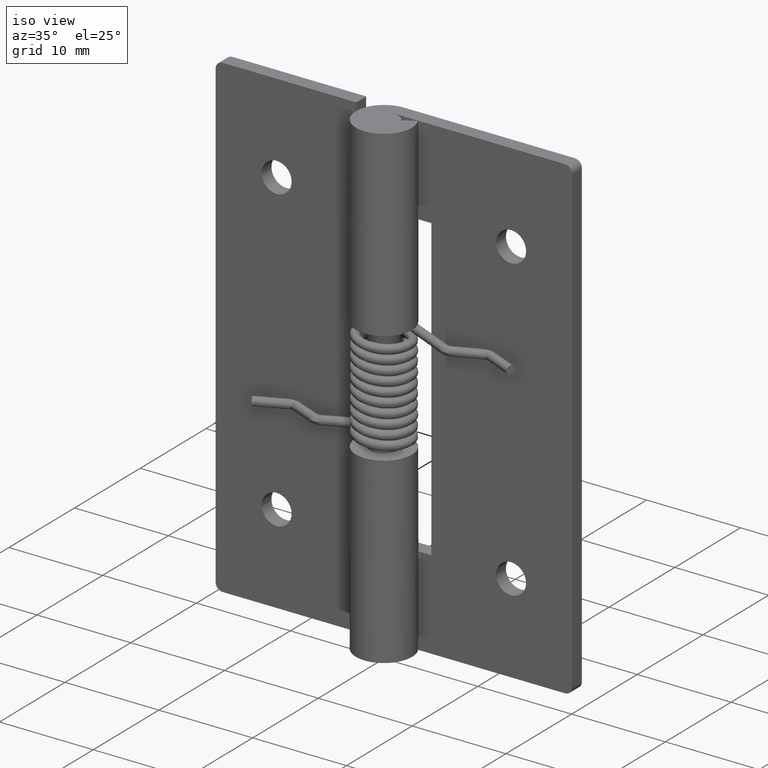
[diagram: clean part render]
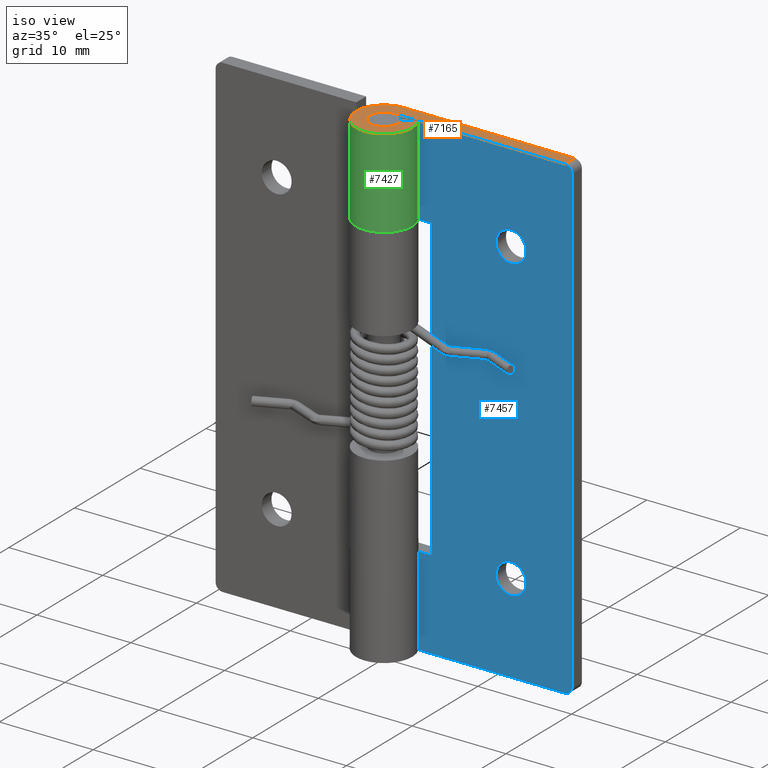
[diagram: same view with three faces highlighted in distinct colors, each labeled with its STEP entity id]
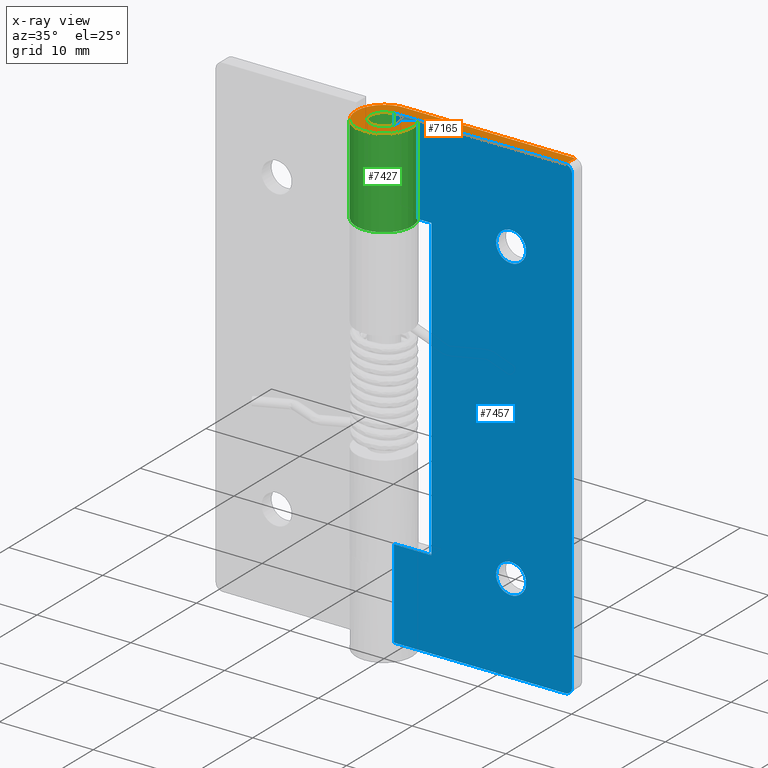
[diagram: x-ray of the same camera — body ghosted, the three highlighted faces saturated]
A machine part, iso view with three faces highlighted in distinct colors.
The next image is the same camera in x-ray (body ghosted, the three faces saturated) — at least one of them is partly hidden behind the body in this view.
Their STEP definitions:

[orange] entity #7165 — the highlighted face is a freeform B-spline surface patch.
#6990=CARTESIAN_POINT('',(18.250000000000000,1.500000000000055,51.0));
#6991=VERTEX_POINT('',#6990);
#7012=CARTESIAN_POINT('',(18.250000000000000,3.0,51.0));
#7013=VERTEX_POINT('',#7012);
#7027=CARTESIAN_POINT('',(18.250000000000000,3.0,51.0));
#7028=CARTESIAN_POINT('',(18.250000000000000,1.500000000000055,51.0));
#7029=QUASI_UNIFORM_CURVE('',1,(#7027,#7028),.UNSPECIFIED.,.F.,.U.);
#7030=EDGE_CURVE('',#7013,#6991,#7029,.T.);
#7096=CARTESIAN_POINT('',(-4.061385404901762,-3.299492219483425,51.0));
#7097=CARTESIAN_POINT('',(19.311435552384690,-3.299492219483425,51.0));
#7098=CARTESIAN_POINT('',(-4.061385404901762,3.299690264964965,51.0));
#7099=CARTESIAN_POINT('',(19.311435552384690,3.299690264964965,51.0));
#7100=B_SPLINE_SURFACE_WITH_KNOTS('',1,1,((#7096,#7098),(#7097,#7099)),.UNSPECIFIED.,.F.,.F.,.U.,(2,2),(2,2),(0.0,23.372820957286450),(0.0,6.599182484448390),.UNSPECIFIED.);
#7101=CARTESIAN_POINT('',(0.0,1.500000000000000,51.0));
#7102=VERTEX_POINT('',#7101);
#7103=CARTESIAN_POINT('',(18.250000000000000,1.500000000000055,51.0));
#7104=CARTESIAN_POINT('',(0.0,1.500000000000000,51.0));
#7105=QUASI_UNIFORM_CURVE('',1,(#7103,#7104),.UNSPECIFIED.,.F.,.U.);
#7106=EDGE_CURVE('',#6991,#7102,#7105,.T.);
#7107=ORIENTED_EDGE('',*,*,#7106,.F.);
#7108=ORIENTED_EDGE('',*,*,#7030,.F.);
#7109=CARTESIAN_POINT('',(0.0,3.0,51.0));
#7110=VERTEX_POINT('',#7109);
#7111=CARTESIAN_POINT('',(0.0,3.0,51.0));
#7112=CARTESIAN_POINT('',(18.250000000000000,3.0,51.0));
#7113=QUASI_UNIFORM_CURVE('',1,(#7111,#7112),.UNSPECIFIED.,.F.,.U.);
#7114=EDGE_CURVE('',#7110,#7013,#7113,.T.);
#7115=ORIENTED_EDGE('',*,*,#7114,.F.);
#7116=CARTESIAN_POINT('',(2.626309197333780,1.450000000000000,51.0));
#7117=VERTEX_POINT('',#7116);
#7118=CARTESIAN_POINT('',(2.626309197333780,1.450000000000000,51.0));
#7119=CARTESIAN_POINT('',(3.733431584505770,-0.555272902071675,51.0));
#7120=CARTESIAN_POINT('',(2.090650590886091,-2.151552952364324,51.0));
#7121=CARTESIAN_POINT('',(0.447869597266413,-3.747833002656972,51.0));
#7122=CARTESIAN_POINT('',(-1.524795068197689,-2.583602136552764,51.0));
#7123=CARTESIAN_POINT('',(-3.497459733661792,-1.419371270448555,51.0));
#7124=CARTESIAN_POINT('',(-2.894028888043301,0.790314364775722,51.0));
#7125=CARTESIAN_POINT('',(-2.290598042424809,3.000000000000000,51.0));
#7126=CARTESIAN_POINT('',(0.0,3.0,51.0));
#7134=(BOUNDED_CURVE()B_SPLINE_CURVE(2,(#7118,#7119,#7120,#7121,#7122,#7123,#7124,#7125,#7126),.UNSPECIFIED.,.F.,.U.)B_SPLINE_CURVE_WITH_KNOTS((3,2,2,2,3),(0.0,0.250000000000000,0.500000000000000,0.750000000000000,1.0),.UNSPECIFIED.)CURVE()GEOMETRIC_REPRESENTATION_ITEM()RATIONAL_B_SPLINE_CURVE((1.0,0.794807562115481,1.0,0.794807562115481,1.0,0.794807562115481,1.0,0.794807562115481,1.0))REPRESENTATION_ITEM(''));
#7135=EDGE_CURVE('',#7117,#7110,#7134,.T.);
#7136=ORIENTED_EDGE('',*,*,#7135,.F.);
#7137=CARTESIAN_POINT('',(1.313154598666890,0.725000000000000,51.0));
#7138=VERTEX_POINT('',#7137);
#7139=CARTESIAN_POINT('',(1.313154598666890,0.725000000000000,51.0));
#7140=CARTESIAN_POINT('',(2.626309197333780,1.450000000000000,51.0));
#7141=QUASI_UNIFORM_CURVE('',1,(#7139,#7140),.UNSPECIFIED.,.F.,.U.);
#7142=EDGE_CURVE('',#7138,#7117,#7141,.T.);
#7143=ORIENTED_EDGE('',*,*,#7142,.F.);
#7144=CARTESIAN_POINT('',(1.313154598666890,0.725000000000000,51.0));
#7145=CARTESIAN_POINT('',(1.866715792252885,-0.277636451035838,51.0));
#7146=CARTESIAN_POINT('',(1.045325295443045,-1.075776476182162,51.0));
#7147=CARTESIAN_POINT('',(0.223934798633207,-1.873916501328486,51.0));
#7148=CARTESIAN_POINT('',(-0.762397534098844,-1.291801068276382,51.0));
#7149=CARTESIAN_POINT('',(-1.748729866830896,-0.709685635224277,51.0));
#7150=CARTESIAN_POINT('',(-1.447014444021651,0.395157182387861,51.0));
#7151=CARTESIAN_POINT('',(-1.145299021212405,1.500000000000000,51.0));
#7152=CARTESIAN_POINT('',(0.0,1.500000000000000,51.0));
#7160=(BOUNDED_CURVE()B_SPLINE_CURVE(2,(#7144,#7145,#7146,#7147,#7148,#7149,#7150,#7151,#7152),.UNSPECIFIED.,.F.,.U.)B_SPLINE_CURVE_WITH_KNOTS((3,2,2,2,3),(0.0,0.250000000000000,0.500000000000000,0.750000000000000,1.0),.UNSPECIFIED.)CURVE()GEOMETRIC_REPRESENTATION_ITEM()RATIONAL_B_SPLINE_CURVE((1.0,0.794807562115481,1.0,0.794807562115481,1.0,0.794807562115481,1.0,0.794807562115481,1.0))REPRESENTATION_ITEM(''));
#7161=EDGE_CURVE('',#7138,#7102,#7160,.T.);
#7162=ORIENTED_EDGE('',*,*,#7161,.T.);
#7163=EDGE_LOOP('',(#7107,#7108,#7115,#7136,#7143,#7162));
#7164=FACE_OUTER_BOUND('',#7163,.T.);
#7165=ADVANCED_FACE('',(#7164),#7100,.T.);

[blue] entity #7457 — the highlighted face is a freeform B-spline surface patch.
#6448=CARTESIAN_POINT('',(14.088815242160010,1.500000000000000,9.688854775634493));
#6449=VERTEX_POINT('',#6448);
#6450=CARTESIAN_POINT('',(12.500000000000000,1.500000000000000,7.899999999999800));
#6451=VERTEX_POINT('',#6450);
#6452=CARTESIAN_POINT('',(14.088815242160010,1.500000000000000,9.688854775634491));
#6453=CARTESIAN_POINT('',(14.099999999999998,1.500000000000000,9.594758591628681));
#6454=CARTESIAN_POINT('',(14.100000000000000,1.500000000000000,9.499999999999801));
#6455=CARTESIAN_POINT('',(14.100000000000001,1.500000000000000,7.899999999999800));
#6456=CARTESIAN_POINT('',(12.500000000000000,1.500000000000000,7.899999999999800));
#6464=(BOUNDED_CURVE()B_SPLINE_CURVE(2,(#6452,#6453,#6454,#6455,#6456),.UNSPECIFIED.,.F.,.U.)B_SPLINE_CURVE_WITH_KNOTS((3,2,3),(0.229562473476526,0.250000000000000,0.500000000000000),.UNSPECIFIED.)CURVE()GEOMETRIC_REPRESENTATION_ITEM()RATIONAL_B_SPLINE_CURVE((0.956026754111212,0.976055948287817,1.0,0.707106781186548,1.0))REPRESENTATION_ITEM(''));
#6465=EDGE_CURVE('',#6449,#6451,#6464,.T.);
#6506=CARTESIAN_POINT('',(10.902984322528990,1.500000000000000,9.402322336678992));
#6507=VERTEX_POINT('',#6506);
#6513=CARTESIAN_POINT('',(12.500000000000000,1.500000000000000,7.899999999999800));
#6514=CARTESIAN_POINT('',(10.994870293073713,1.500000000000000,7.899999999999798));
#6515=CARTESIAN_POINT('',(10.902984322528990,1.500000000000000,9.402322336678992));
#6523=(BOUNDED_CURVE()B_SPLINE_CURVE(2,(#6513,#6514,#6515),.UNSPECIFIED.,.F.,.U.)B_SPLINE_CURVE_WITH_KNOTS((3,3),(0.500000000000000,0.739332962227914),.UNSPECIFIED.)CURVE()GEOMETRIC_REPRESENTATION_ITEM()RATIONAL_B_SPLINE_CURVE((1.0,0.719603993299632,0.976072041643080))REPRESENTATION_ITEM(''));
#6524=EDGE_CURVE('',#6451,#6507,#6523,.T.);
#6547=CARTESIAN_POINT('',(12.500000000000000,1.500000000000000,11.099999999999801));
#6548=VERTEX_POINT('',#6547);
#6549=CARTESIAN_POINT('',(12.500000000000000,1.500000000000000,11.099999999999801));
#6550=CARTESIAN_POINT('',(13.921079241190951,1.500000000000000,11.099999999999801));
#6551=CARTESIAN_POINT('',(14.088815242160010,1.500000000000000,9.688854775634491));
#6559=(BOUNDED_CURVE()B_SPLINE_CURVE(2,(#6549,#6550,#6551),.UNSPECIFIED.,.F.,.U.)B_SPLINE_CURVE_WITH_KNOTS((3,3),(0.0,0.229562473476526),.UNSPECIFIED.)CURVE()GEOMETRIC_REPRESENTATION_ITEM()RATIONAL_B_SPLINE_CURVE((1.0,0.731050832898730,0.956026754111212))REPRESENTATION_ITEM(''));
#6560=EDGE_CURVE('',#6548,#6449,#6559,.T.);
#6562=CARTESIAN_POINT('',(10.902984322528987,1.500000000000000,9.402322336678992));
#6563=CARTESIAN_POINT('',(10.899999999999999,1.500000000000000,9.451115578656840));
#6564=CARTESIAN_POINT('',(10.900000000000000,1.500000000000000,9.499999999999801));
#6565=CARTESIAN_POINT('',(10.900000000000000,1.500000000000000,11.099999999999801));
#6566=CARTESIAN_POINT('',(12.500000000000000,1.500000000000000,11.099999999999801));
#6574=(BOUNDED_CURVE()B_SPLINE_CURVE(2,(#6562,#6563,#6564,#6565,#6566),.UNSPECIFIED.,.F.,.U.)B_SPLINE_CURVE_WITH_KNOTS((3,2,3),(0.739332962227914,0.750000000000000,1.0),.UNSPECIFIED.)CURVE()GEOMETRIC_REPRESENTATION_ITEM()RATIONAL_B_SPLINE_CURVE((0.976072041643082,0.987502787886917,1.0,0.707106781186548,1.0))REPRESENTATION_ITEM(''));
#6575=EDGE_CURVE('',#6507,#6548,#6574,.T.);
#6634=CARTESIAN_POINT('',(14.088815242160010,1.500000000000000,41.688854775634681));
#6635=VERTEX_POINT('',#6634);
#6636=CARTESIAN_POINT('',(12.500000000000000,1.500000000000000,39.900000000000013));
#6637=VERTEX_POINT('',#6636);
#6638=CARTESIAN_POINT('',(14.088815242160015,1.500000000000000,41.688854775634681));
#6639=CARTESIAN_POINT('',(14.100000000000005,1.500000000000000,41.594758591628882));
#6640=CARTESIAN_POINT('',(14.100000000000000,1.500000000000000,41.500000000000000));
#6641=CARTESIAN_POINT('',(14.100000000000001,1.500000000000000,39.900000000000006));
#6642=CARTESIAN_POINT('',(12.500000000000000,1.500000000000000,39.900000000000013));
#6650=(BOUNDED_CURVE()B_SPLINE_CURVE(2,(#6638,#6639,#6640,#6641,#6642),.UNSPECIFIED.,.F.,.U.)B_SPLINE_CURVE_WITH_KNOTS((3,2,3),(0.229562473476527,0.250000000000000,0.500000000000000),.UNSPECIFIED.)CURVE()GEOMETRIC_REPRESENTATION_ITEM()RATIONAL_B_SPLINE_CURVE((0.956026754111214,0.976055948287818,1.0,0.707106781186548,1.0))REPRESENTATION_ITEM(''));
#6651=EDGE_CURVE('',#6635,#6637,#6650,.T.);
#6692=CARTESIAN_POINT('',(10.902984322528990,1.500000000000000,41.402322336679191));
#6693=VERTEX_POINT('',#6692);
#6699=CARTESIAN_POINT('',(12.500000000000000,1.500000000000000,39.900000000000013));
#6700=CARTESIAN_POINT('',(10.994870293073713,1.500000000000000,39.899999999999999));
#6701=CARTESIAN_POINT('',(10.902984322528990,1.500000000000000,41.402322336679191));
#6709=(BOUNDED_CURVE()B_SPLINE_CURVE(2,(#6699,#6700,#6701),.UNSPECIFIED.,.F.,.U.)B_SPLINE_CURVE_WITH_KNOTS((3,3),(0.500000000000000,0.739332962227914),.UNSPECIFIED.)CURVE()GEOMETRIC_REPRESENTATION_ITEM()RATIONAL_B_SPLINE_CURVE((1.0,0.719603993299632,0.976072041643080))REPRESENTATION_ITEM(''));
#6710=EDGE_CURVE('',#6637,#6693,#6709,.T.);
#6733=CARTESIAN_POINT('',(12.500000000000000,1.500000000000000,43.100000000000001));
#6734=VERTEX_POINT('',#6733);
#6735=CARTESIAN_POINT('',(12.500000000000000,1.500000000000000,43.100000000000001));
#6736=CARTESIAN_POINT('',(13.921079241190945,1.500000000000000,43.099999999999994));
#6737=CARTESIAN_POINT('',(14.088815242160013,1.500000000000000,41.688854775634674));
#6745=(BOUNDED_CURVE()B_SPLINE_CURVE(2,(#6735,#6736,#6737),.UNSPECIFIED.,.F.,.U.)B_SPLINE_CURVE_WITH_KNOTS((3,3),(0.0,0.229562473476527),.UNSPECIFIED.)CURVE()GEOMETRIC_REPRESENTATION_ITEM()RATIONAL_B_SPLINE_CURVE((1.0,0.731050832898729,0.956026754111214))REPRESENTATION_ITEM(''));
#6746=EDGE_CURVE('',#6734,#6635,#6745,.T.);
#6748=CARTESIAN_POINT('',(10.902984322528994,1.499999999999999,41.402322336679191));
#6749=CARTESIAN_POINT('',(10.900000000000002,1.500000000000000,41.451115578657031));
#6750=CARTESIAN_POINT('',(10.900000000000000,1.500000000000000,41.500000000000000));
#6751=CARTESIAN_POINT('',(10.900000000000000,1.500000000000000,43.099999999999994));
#6752=CARTESIAN_POINT('',(12.500000000000000,1.500000000000000,43.100000000000001));
#6760=(BOUNDED_CURVE()B_SPLINE_CURVE(2,(#6748,#6749,#6750,#6751,#6752),.UNSPECIFIED.,.F.,.U.)B_SPLINE_CURVE_WITH_KNOTS((3,2,3),(0.739332962227914,0.750000000000000,1.0),.UNSPECIFIED.)CURVE()GEOMETRIC_REPRESENTATION_ITEM()RATIONAL_B_SPLINE_CURVE((0.976072041643081,0.987502787886916,1.0,0.707106781186548,1.0))REPRESENTATION_ITEM(''));
#6761=EDGE_CURVE('',#6693,#6734,#6760,.T.);
#6803=CARTESIAN_POINT('',(0.0,1.500000000000000,9.499999999999840));
#6804=VERTEX_POINT('',#6803);
#6805=CARTESIAN_POINT('',(4.0,1.499999999999946,9.499999999999801));
#6806=VERTEX_POINT('',#6805);
#6807=CARTESIAN_POINT('',(0.0,1.500000000000000,9.499999999999840));
#6808=CARTESIAN_POINT('',(4.0,1.499999999999946,9.499999999999801));
#6809=QUASI_UNIFORM_CURVE('',1,(#6807,#6808),.UNSPECIFIED.,.F.,.U.);
#6810=EDGE_CURVE('',#6804,#6806,#6809,.T.);
#6911=CARTESIAN_POINT('',(4.0,1.499999999999946,41.500000000000000));
#6912=VERTEX_POINT('',#6911);
#6918=CARTESIAN_POINT('',(0.0,1.500000000000000,41.500000000000000));
#6919=VERTEX_POINT('',#6918);
#6920=CARTESIAN_POINT('',(4.0,1.499999999999946,41.500000000000000));
#6921=CARTESIAN_POINT('',(0.0,1.500000000000000,41.500000000000000));
#6922=QUASI_UNIFORM_CURVE('',1,(#6920,#6921),.UNSPECIFIED.,.F.,.U.);
#6923=EDGE_CURVE('',#6912,#6919,#6922,.T.);
#6959=CARTESIAN_POINT('',(4.0,1.499999999999946,9.499999999999801));
#6960=CARTESIAN_POINT('',(4.0,1.499999999999946,41.500000000000000));
#6961=QUASI_UNIFORM_CURVE('',1,(#6959,#6960),.UNSPECIFIED.,.F.,.U.);
#6962=EDGE_CURVE('',#6806,#6912,#6961,.T.);
#6988=CARTESIAN_POINT('',(19.0,1.500000000000055,50.250000000000000));
#6989=VERTEX_POINT('',#6988);
#6990=CARTESIAN_POINT('',(18.250000000000000,1.500000000000055,51.0));
#6991=VERTEX_POINT('',#6990);
#6992=CARTESIAN_POINT('',(19.0,1.500000000000055,50.250000000000000));
#6993=CARTESIAN_POINT('',(18.999999999999993,1.500000000000055,51.000000000000007));
#6994=CARTESIAN_POINT('',(18.250000000000000,1.500000000000055,51.000000000000007));
#7002=(BOUNDED_CURVE()B_SPLINE_CURVE(2,(#6992,#6993,#6994),.UNSPECIFIED.,.F.,.U.)CURVE()GEOMETRIC_REPRESENTATION_ITEM()QUASI_UNIFORM_CURVE()RATIONAL_B_SPLINE_CURVE((1.0,0.707106781186548,1.0))REPRESENTATION_ITEM(''));
#7003=EDGE_CURVE('',#6989,#6991,#7002,.T.);
#7049=CARTESIAN_POINT('',(18.250000000000000,1.500000000000000,0.0));
#7050=VERTEX_POINT('',#7049);
#7051=CARTESIAN_POINT('',(19.0,1.500000000000055,0.750000000000000));
#7052=VERTEX_POINT('',#7051);
#7053=CARTESIAN_POINT('',(18.250000000000000,1.500000000000000,0.0));
#7054=CARTESIAN_POINT('',(18.999999999999993,1.500000000000055,0.0));
#7055=CARTESIAN_POINT('',(19.0,1.500000000000055,0.750000000000000));
#7063=(BOUNDED_CURVE()B_SPLINE_CURVE(2,(#7053,#7054,#7055),.UNSPECIFIED.,.F.,.U.)CURVE()GEOMETRIC_REPRESENTATION_ITEM()QUASI_UNIFORM_CURVE()RATIONAL_B_SPLINE_CURVE((1.0,0.707106781186548,1.0))REPRESENTATION_ITEM(''));
#7064=EDGE_CURVE('',#7050,#7052,#7063,.T.);
#7101=CARTESIAN_POINT('',(0.0,1.500000000000000,51.0));
#7102=VERTEX_POINT('',#7101);
#7103=CARTESIAN_POINT('',(18.250000000000000,1.500000000000055,51.0));
#7104=CARTESIAN_POINT('',(0.0,1.500000000000000,51.0));
#7105=QUASI_UNIFORM_CURVE('',1,(#7103,#7104),.UNSPECIFIED.,.F.,.U.);
#7106=EDGE_CURVE('',#6991,#7102,#7105,.T.);
#7172=CARTESIAN_POINT('',(0.0,1.500000000000000,0.0));
#7173=VERTEX_POINT('',#7172);
#7174=CARTESIAN_POINT('',(18.250000000000000,1.500000000000000,0.0));
#7175=CARTESIAN_POINT('',(0.0,1.500000000000000,0.0));
#7176=QUASI_UNIFORM_CURVE('',1,(#7174,#7175),.UNSPECIFIED.,.F.,.U.);
#7177=EDGE_CURVE('',#7050,#7173,#7176,.T.);
#7247=CARTESIAN_POINT('',(19.0,1.500000000000055,0.750000000000000));
#7248=CARTESIAN_POINT('',(19.0,1.500000000000055,50.250000000000000));
#7249=QUASI_UNIFORM_CURVE('',1,(#7247,#7248),.UNSPECIFIED.,.F.,.U.);
#7250=EDGE_CURVE('',#7052,#6989,#7249,.T.);
#7318=CARTESIAN_POINT('',(0.0,1.500000000000000,0.0));
#7319=CARTESIAN_POINT('',(0.0,1.500000000000000,9.499999999999840));
#7320=QUASI_UNIFORM_CURVE('',1,(#7318,#7319),.UNSPECIFIED.,.F.,.U.);
#7321=EDGE_CURVE('',#7173,#6804,#7320,.T.);
#7353=CARTESIAN_POINT('',(0.0,1.500000000000000,41.500000000000000));
#7354=CARTESIAN_POINT('',(0.0,1.500000000000000,51.0));
#7355=QUASI_UNIFORM_CURVE('',1,(#7353,#7354),.UNSPECIFIED.,.F.,.U.);
#7356=EDGE_CURVE('',#6919,#7102,#7355,.T.);
#7428=CARTESIAN_POINT('',(-0.949049963174314,1.500000000000000,-2.547449901152102));
#7429=CARTESIAN_POINT('',(-0.949049963174314,1.500000000000000,53.547451269078707));
#7430=CARTESIAN_POINT('',(19.949050472794021,1.500000000000000,-2.547449901152102));
#7431=CARTESIAN_POINT('',(19.949050472794021,1.500000000000000,53.547451269078707));
#7432=B_SPLINE_SURFACE_WITH_KNOTS('',1,1,((#7428,#7430),(#7429,#7431)),.UNSPECIFIED.,.F.,.F.,.U.,(2,2),(2,2),(0.0,56.094901170230813),(0.0,20.898100435968342),.UNSPECIFIED.);
#7433=ORIENTED_EDGE('',*,*,#6923,.F.);
#7434=ORIENTED_EDGE('',*,*,#6962,.F.);
#7435=ORIENTED_EDGE('',*,*,#6810,.F.);
#7436=ORIENTED_EDGE('',*,*,#7321,.F.);
#7437=ORIENTED_EDGE('',*,*,#7177,.F.);
#7438=ORIENTED_EDGE('',*,*,#7064,.T.);
#7439=ORIENTED_EDGE('',*,*,#7250,.T.);
#7440=ORIENTED_EDGE('',*,*,#7003,.T.);
#7441=ORIENTED_EDGE('',*,*,#7106,.T.);
#7442=ORIENTED_EDGE('',*,*,#7356,.F.);
#7443=EDGE_LOOP('',(#7433,#7434,#7435,#7436,#7437,#7438,#7439,#7440,#7441,#7442));
#7444=FACE_OUTER_BOUND('',#7443,.T.);
#7445=ORIENTED_EDGE('',*,*,#6710,.T.);
#7446=ORIENTED_EDGE('',*,*,#6761,.T.);
#7447=ORIENTED_EDGE('',*,*,#6746,.T.);
#7448=ORIENTED_EDGE('',*,*,#6651,.T.);
#7449=EDGE_LOOP('',(#7445,#7446,#7447,#7448));
#7450=FACE_BOUND('',#7449,.T.);
#7451=ORIENTED_EDGE('',*,*,#6524,.T.);
#7452=ORIENTED_EDGE('',*,*,#6575,.T.);
#7453=ORIENTED_EDGE('',*,*,#6560,.T.);
#7454=ORIENTED_EDGE('',*,*,#6465,.T.);
#7455=EDGE_LOOP('',(#7451,#7452,#7453,#7454));
#7456=FACE_BOUND('',#7455,.T.);
#7457=ADVANCED_FACE('',(#7444,#7450,#7456),#7432,.F.);

[green] entity #7427 — the highlighted face is a freeform B-spline surface patch.
#6881=CARTESIAN_POINT('',(2.626309197333780,1.450000000000000,41.500000000000000));
#6882=VERTEX_POINT('',#6881);
#6883=CARTESIAN_POINT('',(0.0,3.0,41.500000000000000));
#6884=VERTEX_POINT('',#6883);
#6885=CARTESIAN_POINT('',(2.626309197333780,1.450000000000000,41.500000000000000));
#6886=CARTESIAN_POINT('',(3.733431584505770,-0.555272902071676,41.500000000000000));
#6887=CARTESIAN_POINT('',(2.090650590886091,-2.151552952364325,41.500000000000000));
#6888=CARTESIAN_POINT('',(0.447869597266413,-3.747833002656972,41.500000000000000));
#6889=CARTESIAN_POINT('',(-1.524795068197689,-2.583602136552763,41.500000000000000));
#6890=CARTESIAN_POINT('',(-3.497459733661793,-1.419371270448554,41.500000000000000));
#6891=CARTESIAN_POINT('',(-2.894028888043301,0.790314364775723,41.500000000000000));
#6892=CARTESIAN_POINT('',(-2.290598042424808,3.0,41.500000000000000));
#6893=CARTESIAN_POINT('',(0.0,3.0,41.500000000000000));
#6901=(BOUNDED_CURVE()B_SPLINE_CURVE(2,(#6885,#6886,#6887,#6888,#6889,#6890,#6891,#6892,#6893),.UNSPECIFIED.,.F.,.U.)B_SPLINE_CURVE_WITH_KNOTS((3,2,2,2,3),(0.0,0.250000000000000,0.500000000000000,0.750000000000000,1.0),.UNSPECIFIED.)CURVE()GEOMETRIC_REPRESENTATION_ITEM()RATIONAL_B_SPLINE_CURVE((1.0,0.794807562115481,1.0,0.794807562115481,1.0,0.794807562115481,1.0,0.794807562115481,1.0))REPRESENTATION_ITEM(''));
#6902=EDGE_CURVE('',#6882,#6884,#6901,.T.);
#7109=CARTESIAN_POINT('',(0.0,3.0,51.0));
#7110=VERTEX_POINT('',#7109);
#7116=CARTESIAN_POINT('',(2.626309197333780,1.450000000000000,51.0));
#7117=VERTEX_POINT('',#7116);
#7118=CARTESIAN_POINT('',(2.626309197333780,1.450000000000000,51.0));
#7119=CARTESIAN_POINT('',(3.733431584505770,-0.555272902071675,51.0));
#7120=CARTESIAN_POINT('',(2.090650590886091,-2.151552952364324,51.0));
#7121=CARTESIAN_POINT('',(0.447869597266413,-3.747833002656972,51.0));
#7122=CARTESIAN_POINT('',(-1.524795068197689,-2.583602136552764,51.0));
#7123=CARTESIAN_POINT('',(-3.497459733661792,-1.419371270448555,51.0));
#7124=CARTESIAN_POINT('',(-2.894028888043301,0.790314364775722,51.0));
#7125=CARTESIAN_POINT('',(-2.290598042424809,3.000000000000000,51.0));
#7126=CARTESIAN_POINT('',(0.0,3.0,51.0));
#7134=(BOUNDED_CURVE()B_SPLINE_CURVE(2,(#7118,#7119,#7120,#7121,#7122,#7123,#7124,#7125,#7126),.UNSPECIFIED.,.F.,.U.)B_SPLINE_CURVE_WITH_KNOTS((3,2,2,2,3),(0.0,0.250000000000000,0.500000000000000,0.750000000000000,1.0),.UNSPECIFIED.)CURVE()GEOMETRIC_REPRESENTATION_ITEM()RATIONAL_B_SPLINE_CURVE((1.0,0.794807562115481,1.0,0.794807562115481,1.0,0.794807562115481,1.0,0.794807562115481,1.0))REPRESENTATION_ITEM(''));
#7135=EDGE_CURVE('',#7117,#7110,#7134,.T.);
#7288=CARTESIAN_POINT('',(2.626309197333780,1.450000000000000,41.500000000000000));
#7289=CARTESIAN_POINT('',(2.626309197333780,1.450000000000000,51.0));
#7290=QUASI_UNIFORM_CURVE('',1,(#7288,#7289),.UNSPECIFIED.,.F.,.U.);
#7291=EDGE_CURVE('',#6882,#7117,#7290,.T.);
#7395=CARTESIAN_POINT('',(2.584887481324576,1.522615088882112,41.262500000000003));
#7396=CARTESIAN_POINT('',(2.584887481324576,1.522615088882112,51.243437500000013));
#7397=CARTESIAN_POINT('',(4.454017153952614,-1.650537421576552,41.262499999999996));
#7398=CARTESIAN_POINT('',(4.454017153952614,-1.650537421576552,51.243437500000006));
#7399=CARTESIAN_POINT('',(0.968449136630486,-2.839384840024272,41.262500000000003));
#7400=CARTESIAN_POINT('',(0.968449136630486,-2.839384840024272,51.243437500000013));
#7401=CARTESIAN_POINT('',(-2.517118880691642,-4.028232258471992,41.262499999999996));
#7402=CARTESIAN_POINT('',(-2.517118880691642,-4.028232258471992,51.243437500000006));
#7403=CARTESIAN_POINT('',(-2.976562347997527,-0.374268070349911,41.262500000000003));
#7404=CARTESIAN_POINT('',(-2.976562347997527,-0.374268070349911,51.243437500000013));
#7405=CARTESIAN_POINT('',(-3.436005815303412,3.279696117772171,41.262499999999996));
#7406=CARTESIAN_POINT('',(-3.436005815303412,3.279696117772171,51.243437500000006));
#7407=CARTESIAN_POINT('',(0.235377287183536,2.990752001199384,41.262500000000003));
#7408=CARTESIAN_POINT('',(0.235377287183536,2.990752001199384,51.243437500000013));
#7416=(BOUNDED_SURFACE()B_SPLINE_SURFACE(1,2,((#7395,#7397,#7399,#7401,#7403,#7405,#7407),(#7396,#7398,#7400,#7402,#7404,#7406,#7408)),.UNSPECIFIED.,.F.,.F.,.U.)B_SPLINE_SURFACE_WITH_KNOTS((2,2),(3,2,2,3),(0.0,9.980937500000016),(0.0,5.702297214197750,11.404594428395500,17.106891642593251),.UNSPECIFIED.)GEOMETRIC_REPRESENTATION_ITEM()RATIONAL_B_SPLINE_SURFACE(((1.0,0.631578351302498,1.0,0.631578351302498,1.0,0.631578351302498,1.0),(1.0,0.631578351302498,1.0,0.631578351302498,1.0,0.631578351302498,1.0)))REPRESENTATION_ITEM('')SURFACE());
#7417=ORIENTED_EDGE('',*,*,#6902,.F.);
#7418=ORIENTED_EDGE('',*,*,#7291,.T.);
#7419=ORIENTED_EDGE('',*,*,#7135,.T.);
#7420=CARTESIAN_POINT('',(0.0,3.0,41.500000000000000));
#7421=CARTESIAN_POINT('',(0.0,3.0,51.0));
#7422=QUASI_UNIFORM_CURVE('',1,(#7420,#7421),.UNSPECIFIED.,.F.,.U.);
#7423=EDGE_CURVE('',#6884,#7110,#7422,.T.);
#7424=ORIENTED_EDGE('',*,*,#7423,.F.);
#7425=EDGE_LOOP('',(#7417,#7418,#7419,#7424));
#7426=FACE_OUTER_BOUND('',#7425,.T.);
#7427=ADVANCED_FACE('',(#7426),#7416,.T.);